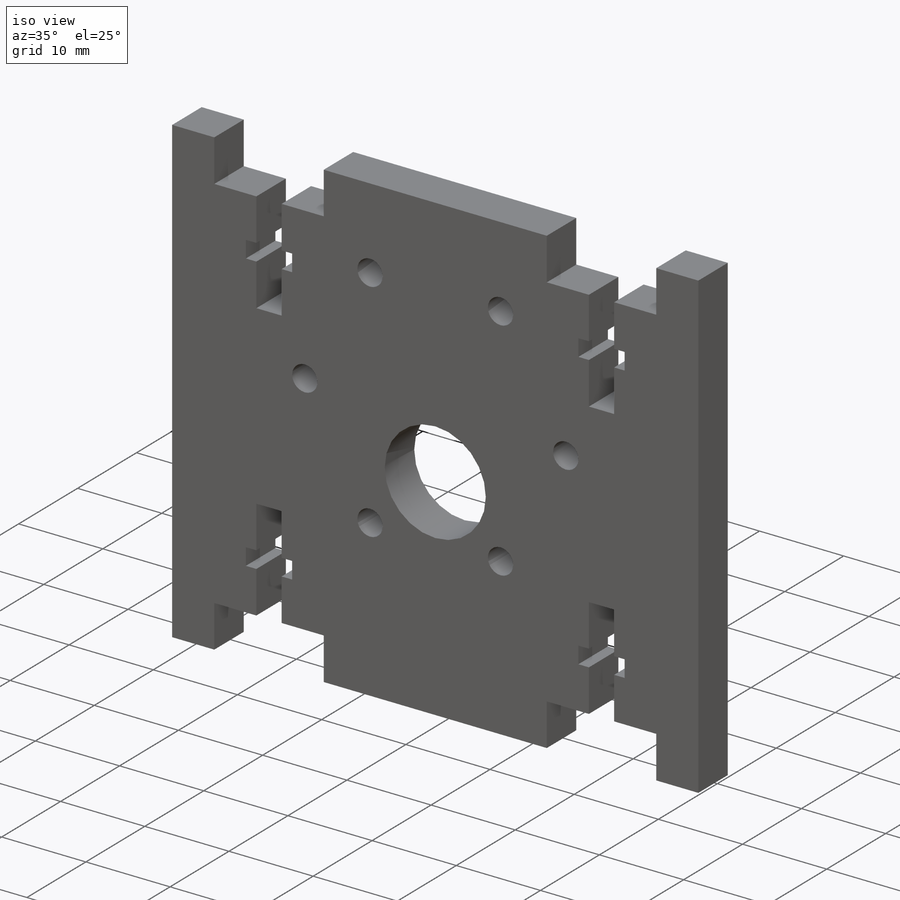
[diagram: iso view]
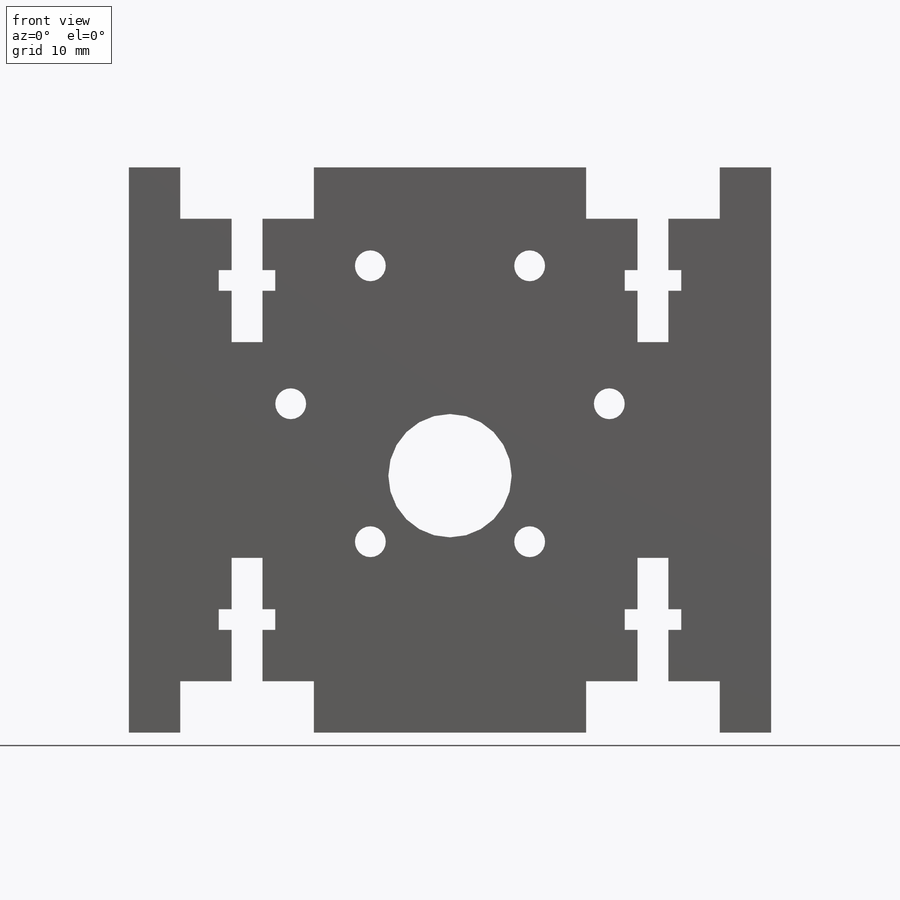
[diagram: front view]
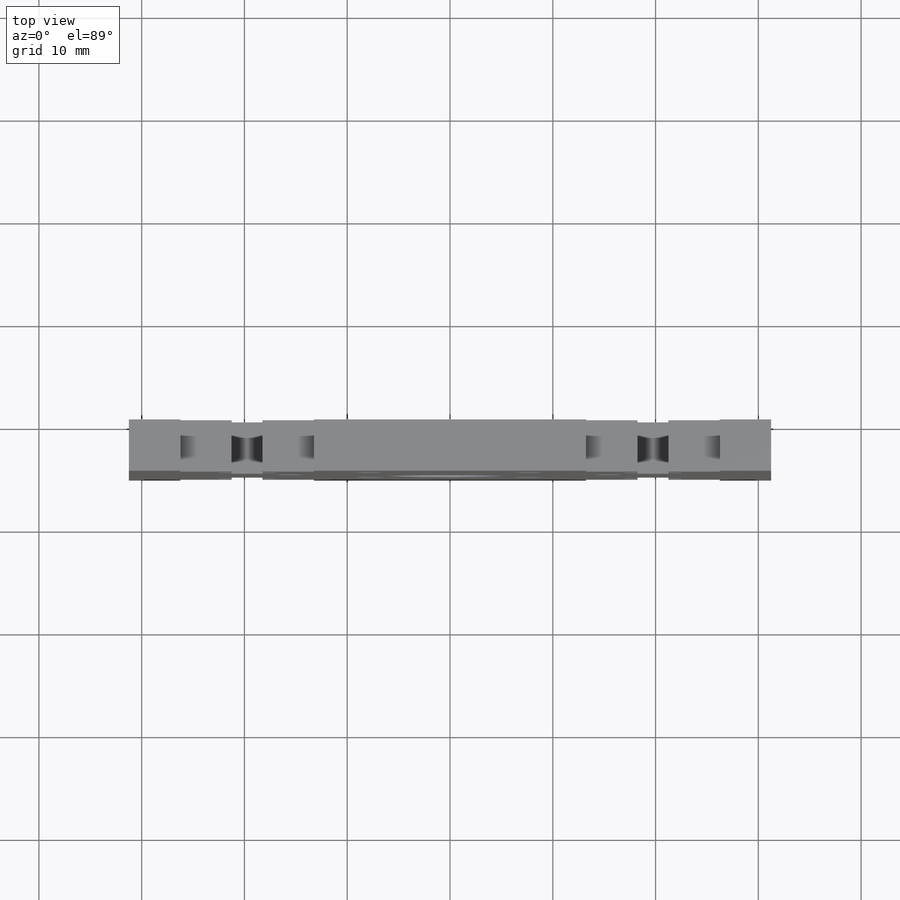
[diagram: top view]
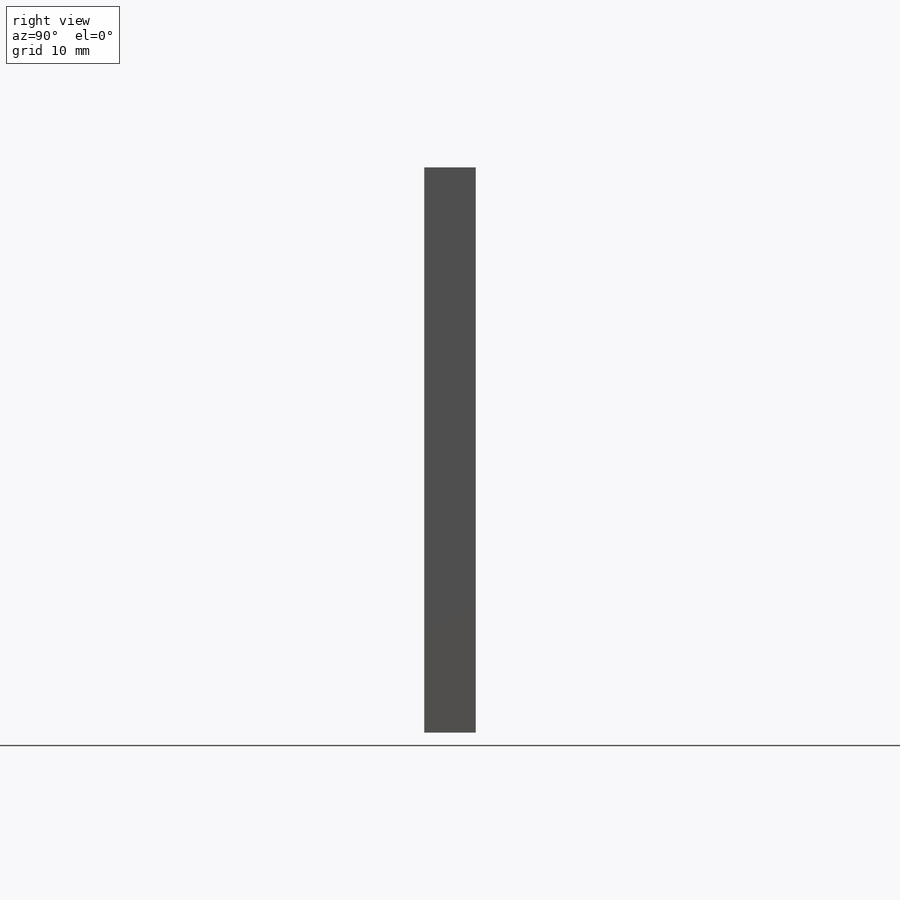
[diagram: right view]
SOLIDWORKS PART (.sldprt)
format: sldprt  version: not decoded by parser v0  size: 283,648 bytes
history: native  units: mm
features: sketch x3, extrude x2, material x1, cut_extrude x1 (+12 scaffold rows collapsed)
feature tree (19):
  scaffold x12  (default folders/planes/origin — collapsed)
  material  "Material <not specified>"
  sketch  "Sketch1"  dims[c1.D1=12.0mm c1.D5=3.0mm c1.D8=31.0mm c1.D2=55.0mm c1.D3=50.0mm c1.D6=20.0mm c1.D7=7.0mm c2.D8=15.0mm c2.D4=6.0]
  extrude  "Boss-Extrude1"  Depth=5mm
  sketch  "Sketch2"  dims[D1=5.5mm D2=2.0mm D3=5.5mm D4=2.0mm D5=3.0mm D6=3.0mm D7=12.0mm D8=12.0mm D9=5.0mm D10=5.0mm]
  cut_extrude  "Cut-Extrude1"  Depth=5mm
  sketch  "Sketch3"  dims[c1.D1=5.0mm c1.D2=5.0mm c1.D3=5.0mm c1.D4=5.0mm c2.D1=5.0mm c2.D2=5.0mm c2.D3=5.0mm c2.D5=5.0mm c2.D6=5.0mm c2.D7=14.5mm]
  extrude  "Boss-Extrude2"  Depth=5mm
decode coverage: 6 of 6 modeling features carry decoded parameters
note: suppression state not decoded; provenance and decode notes live in map.json
